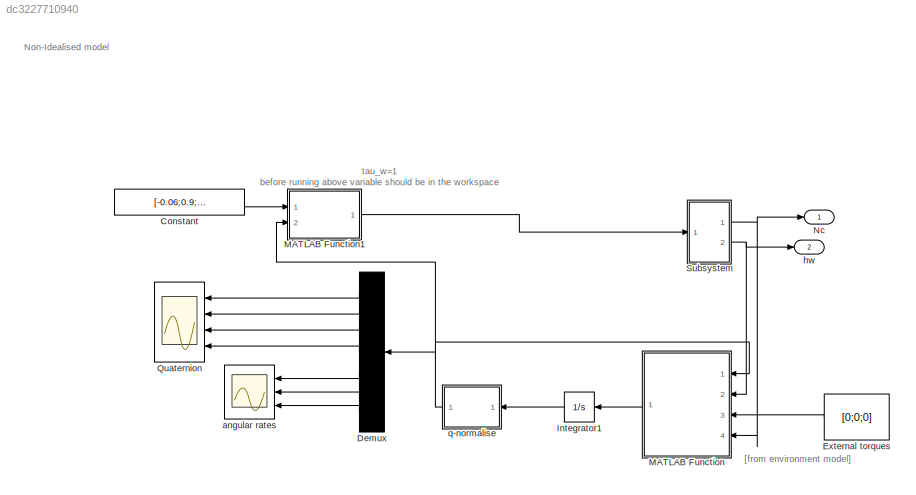
MODEL slx_dc3227710940
KIND model
CONFIG AbsTol = auto
CONFIG FixedStep = 0.001
CONFIG MaxStep = auto
CONFIG MinStep = auto
CONFIG RelTol = 1e-3
CONFIG SampleTimeConstraint = Unconstrained
CONFIG Solver = FixedStepAuto
CONFIG SolverMode = Auto
CONFIG SolverName = FixedStepAuto
CONFIG StartTime = 0.0
CONFIG StopTime = 500
BLOCK [Constant] Constant
  Value = [-0.06;0.9;0.4;0.3;0;0;0.5]
BLOCK [Demux] Demux
  DisplayOption = bar
  Outputs = 7
  Ports = [1, 7]
BLOCK [Constant] External torques 
  Value = [0;0;0]
BLOCK [Integrator] Integrator1
  InitialCondition = [2;3;5;3;3;2;6]
  Ports = [1, 1]
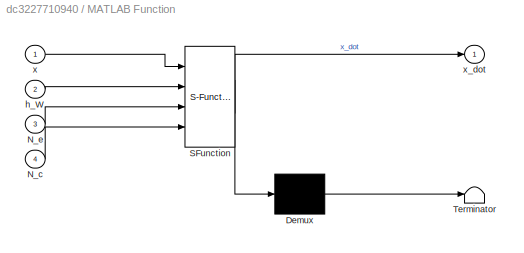
BLOCK [SubSystem] MATLAB Function
  ErrorFcn = Stateflow.Translate.translate
  PermitHierarchicalResolution = ExplicitOnly
  Ports = [4, 1]
  RequestExecContextInheritance = off
  SFBlockType = MATLAB Function
  TreatAsAtomicUnit = on
  Variant = off
BLOCK [Demux] MATLAB Function/ Demux 
  Outputs = 1
  Ports = [1, 1]
BLOCK [S-Function] MATLAB Function/ SFunction 
  EnableBusSupport = on
  FunctionName = sf_sfun
  PortCounts = [4 2]
  Ports = [4, 2]
  SFunctionDeploymentMode = off
  Tag = Stateflow S-Function reaction_wheels_non_ideal_case 2
BLOCK [Terminator] MATLAB Function/ Terminator 
BLOCK [Inport] MATLAB Function/N_c
  IconDisplay = Port number
  Port = 4
BLOCK [Inport] MATLAB Function/N_e
  IconDisplay = Port number
  Port = 3
BLOCK [Inport] MATLAB Function/h_W
  IconDisplay = Port number
  Port = 2
BLOCK [Inport] MATLAB Function/x
  IconDisplay = Port number
BLOCK [Outport] MATLAB Function/x_dot
  IconDisplay = Port number
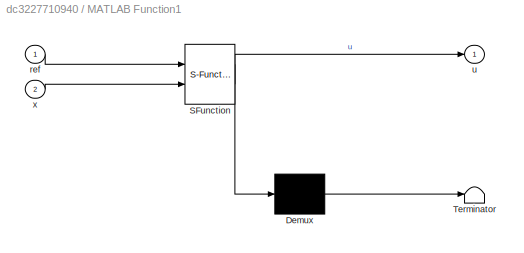
BLOCK [SubSystem] MATLAB Function1
  ErrorFcn = Stateflow.Translate.translate
  PermitHierarchicalResolution = ExplicitOnly
  Ports = [2, 1]
  RequestExecContextInheritance = off
  SFBlockType = MATLAB Function
  TreatAsAtomicUnit = on
  Variant = off
BLOCK [Demux] MATLAB Function1/ Demux 
  Outputs = 1
  Ports = [1, 1]
BLOCK [S-Function] MATLAB Function1/ SFunction 
  EnableBusSupport = on
  FunctionName = sf_sfun
  PortCounts = [2 2]
  Ports = [2, 2]
  SFunctionDeploymentMode = off
  Tag = Stateflow S-Function reaction_wheels_non_ideal_case 1
BLOCK [Terminator] MATLAB Function1/ Terminator 
BLOCK [Inport] MATLAB Function1/ref
  IconDisplay = Port number
BLOCK [Outport] MATLAB Function1/u
  IconDisplay = Port number
BLOCK [Inport] MATLAB Function1/x
  IconDisplay = Port number
  Port = 2
BLOCK [Outport] Nc
  IconDisplay = Port number
BLOCK [Scope] Quaternion
  NumInputPorts = 4
  Ports = [4]
  ScopeSpecificationString = Simulink.scopes.TimeScopeBlockCfg('CurrentConfiguration', extmgr.ConfigurationSet(extmgr.Configuration('Core','General UI',true),extmgr.Configuration('Core','Source UI',true),extmgr.Configuration('Sources','WiredSimulink',true),extmgr.Configuration('Visuals','Time Domain',true,'SerializedDisplays',{struct('MinYLimReal','-1.09062','MaxYLimReal','1.09084','YLabelReal','','MinYLimMag','0.00000','MaxY...<+1388ch>
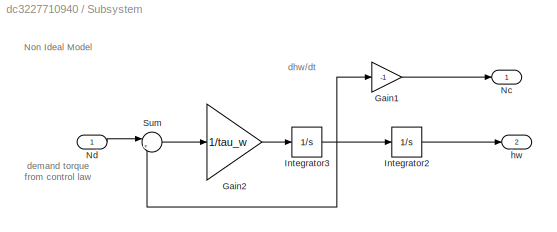
BLOCK [SubSystem] Subsystem
  Ports = [1, 2]
  RequestExecContextInheritance = off
  Variant = off
BLOCK [Gain] Subsystem/Gain1
  Gain = -1
  OutDataTypeStr = Inherit: Inherit via internal rule
  ParamDataTypeStr = Inherit: Inherit via internal rule
  SaturateOnIntegerOverflow = off
BLOCK [Gain] Subsystem/Gain2
  Gain = 1/tau_w
  OutDataTypeStr = Inherit: Inherit via internal rule
  ParamDataTypeStr = Inherit: Inherit via internal rule
  SaturateOnIntegerOverflow = off
BLOCK [Integrator] Subsystem/Integrator2
  Ports = [1, 1]
BLOCK [Integrator] Subsystem/Integrator3
  Ports = [1, 1]
BLOCK [Outport] Subsystem/Nc
  IconDisplay = Port number
BLOCK [Inport] Subsystem/Nd
  IconDisplay = Port number
BLOCK [Sum] Subsystem/Sum
  IconShape = round
  InputSameDT = off
  Inputs = |+-
  OutDataTypeStr = Inherit: Inherit via internal rule
  Ports = [2, 1]
  SaturateOnIntegerOverflow = off
BLOCK [Outport] Subsystem/hw
  IconDisplay = Port number
  Port = 2
BLOCK [Scope] angular rates
  NumInputPorts = 3
  Ports = [3]
  ScopeSpecificationString = Simulink.scopes.TimeScopeBlockCfg('CurrentConfiguration', extmgr.ConfigurationSet(extmgr.Configuration('Core','General UI',true),extmgr.Configuration('Core','Source UI',true),extmgr.Configuration('Sources','WiredSimulink',true,'DataLoggingVariableName','ScopeData1'),extmgr.Configuration('Visuals','Time Domain',true,'SerializedDisplays',{struct('MinYLimReal','-6.33181','MaxYLimReal','8.12659','YLab...<+1423ch>
BLOCK [Outport] hw
  IconDisplay = Port number
  Port = 2
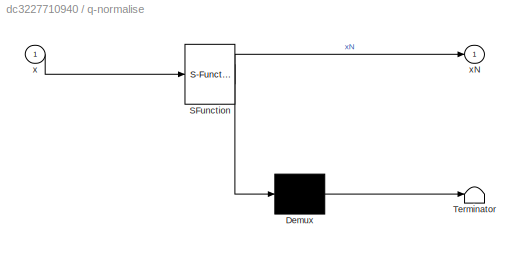
BLOCK [SubSystem] q-normalise
  ErrorFcn = Stateflow.Translate.translate
  PermitHierarchicalResolution = ExplicitOnly
  Ports = [1, 1]
  RequestExecContextInheritance = off
  SFBlockType = MATLAB Function
  TreatAsAtomicUnit = on
  Variant = off
BLOCK [Demux] q-normalise/ Demux 
  Outputs = 1
  Ports = [1, 1]
BLOCK [S-Function] q-normalise/ SFunction 
  EnableBusSupport = on
  FunctionName = sf_sfun
  PortCounts = [1 2]
  Ports = [1, 2]
  SFunctionDeploymentMode = off
  Tag = Stateflow S-Function reaction_wheels_non_ideal_case 7
BLOCK [Terminator] q-normalise/ Terminator 
BLOCK [Inport] q-normalise/x
  IconDisplay = Port number
BLOCK [Outport] q-normalise/xN
  IconDisplay = Port number
ANNOTATION (root): tau_w=1 before running above variable should be in the workspace
ANNOTATION (root): Non-Idealised model
ANNOTATION (root): [from environment model]
ANNOTATION Subsystem: dh w /dt
ANNOTATION Subsystem: Non Ideal Model
ANNOTATION Subsystem: demand torque from control law
LINE Constant:1 -> MATLAB Function1:1
LINE Demux:1 -> Quaternion:1
LINE Demux:2 -> Quaternion:2
LINE Demux:3 -> Quaternion:3
LINE Demux:4 -> Quaternion:4
LINE Demux:5 -> angular rates:1
LINE Demux:6 -> angular rates:2
LINE Demux:7 -> angular rates:3
LINE External torques :1 -> MATLAB Function:3
LINE Integrator1:1 -> q-normalise:1
LINE MATLAB Function1:1 -> Subsystem:1
LINE MATLAB Function:1 -> Integrator1:1
LINE Subsystem/Gain1:1 -> Subsystem/Nc:1
LINE Subsystem/Gain2:1 -> Subsystem/Integrator3:1
LINE Subsystem/Integrator2:1 -> Subsystem/hw:1
NET Subsystem/Integrator3:1 -> Subsystem/Gain1:1, Subsystem/Integrator2:1, Subsystem/Sum:2
LINE Subsystem/Nd:1 -> Subsystem/Sum:1
LINE Subsystem/Sum:1 -> Subsystem/Gain2:1
NET Subsystem:1 -> MATLAB Function:4, Nc:1
NET Subsystem:2 -> MATLAB Function:2, hw:1
NET q-normalise:1 -> Demux:1, MATLAB Function1:2, MATLAB Function:1
note: NET lines group one-source signal fan-out (src -> all destinations, sorted); 1:1 wires keep LINE
CHART MATLAB Function1 states=1 transitions=1
  STATE_LABEL 'eML_blk_kernel()'
  STATE_LABEL 'SCRIPT:\nfunction u = fcn(ref,x)\nr=ref;\n%quaternion error calculation\nq_ref=[r(4) r(3) -r(2) -r(1) ;-r(3) r(4) r(1) r(2);r(2) -r(1) r(4) -r(3);r(1) r(2) r(3) r(4)];\nq_s=x(1:4);\nq_e=q_ref * q_s;\nq1_e=[q_e(1)*q_e(4);q_e(2)*q_e(4);q_e(3)*q_e(4)];\n%angular velocity error calculation\nw_s=x(5:7);\nw_r=r(5:7);\nw_e=w_s -w_r;\nkp=0.002; kpd =0.001;\nu=-kp*q1_e - kpd*w_e;'
CHART MATLAB Function states=1 transitions=1
  STATE_LABEL 'eML_blk_kernel()'
  STATE_LABEL 'SCRIPT:\nfunction x_dot= fcn(x,h_W,N_e,N_c)\n%W_dot calculation\nw = x(5:7);\nS_W=[ 0 -w(3) w(2);w(3) 0 w(1);-w(2) w(1) 0;];\nI_s=[14.3 0 0;0 13.6 0; 0 0 4.6 ];\n\nw_dot=-I_s\\S_W*I_s*w - I_s\\S_W*h_W + I_s\\N_c + I_s\\N_e;      %I_s\\ means inv(I_s)*Ne\n\n%q_dot calculation\nq = x(1:4);\nW = ...\n    [ 0 w(3) -w(2) w(1);\n      -w(3) 0 w(1) w(2);\n      w(2) -w(1) 0 w(3);\n      -w(1) -w(2) -w(3) 0];\n  \nq_dot = 0.5 ...<+29ch>'
CHART q-normalise states=1 transitions=1
  STATE_LABEL 'eML_blk_kernel()'
  STATE_LABEL 'SCRIPT:\nfunction xN  = fcn(x)\n\nq = x(1:4);\nq = q/sqrt(dot(q,q));\nxN = [q; x(5:7)];'
